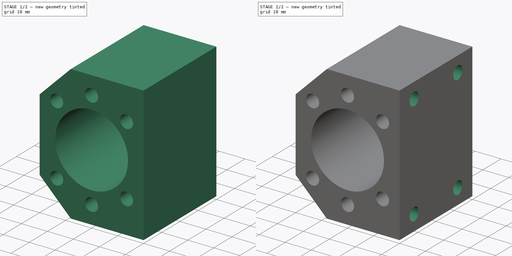
[diagram: build sequence overview — one tinted view per stage of 2, left to right]
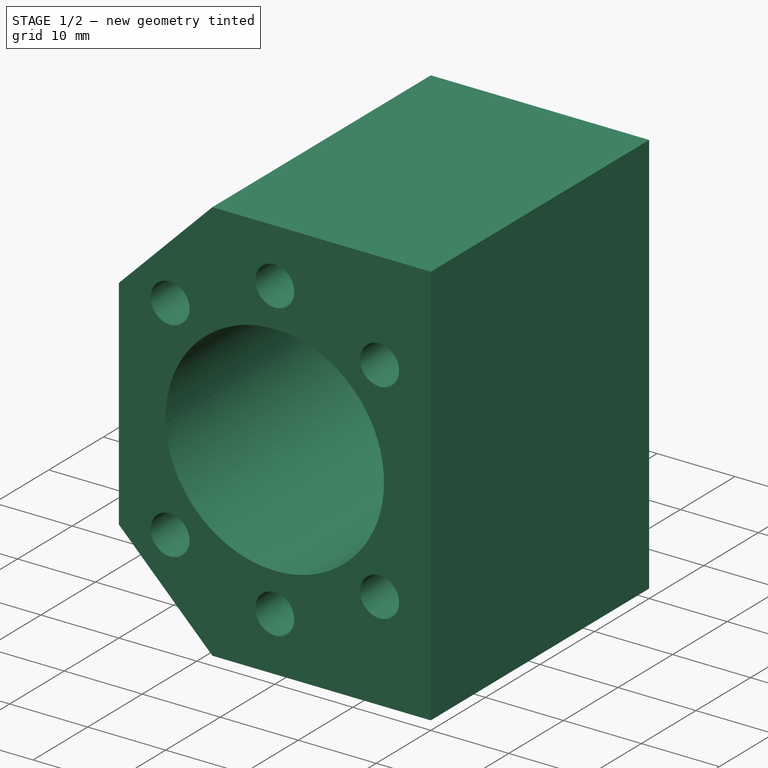
[diagram: stage 1 of 2 — iso view after this stage's code; geometry added in this stage tinted green]
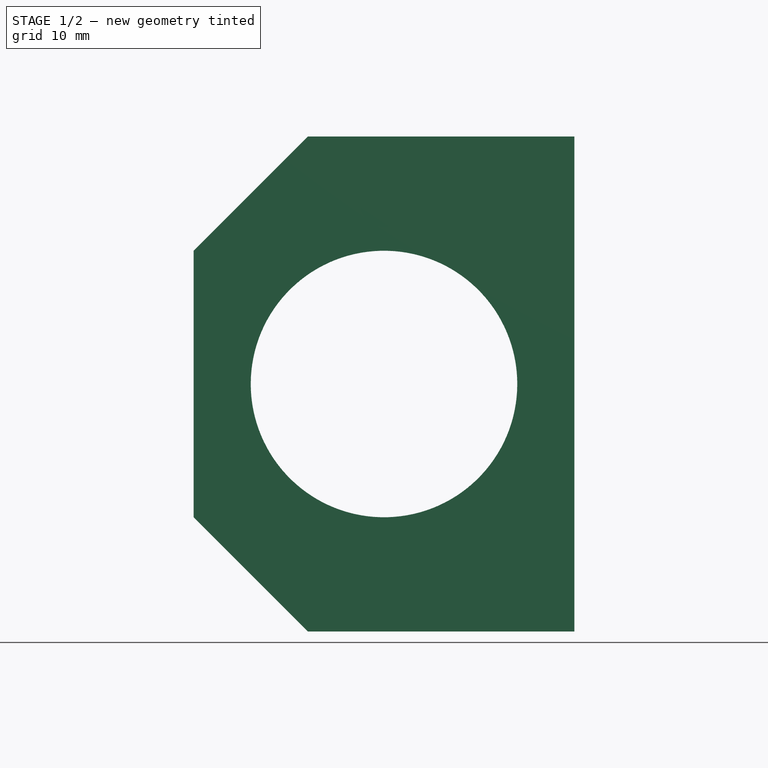
[diagram: stage 1 of 2 — front view after this stage's code; geometry added in this stage tinted green]
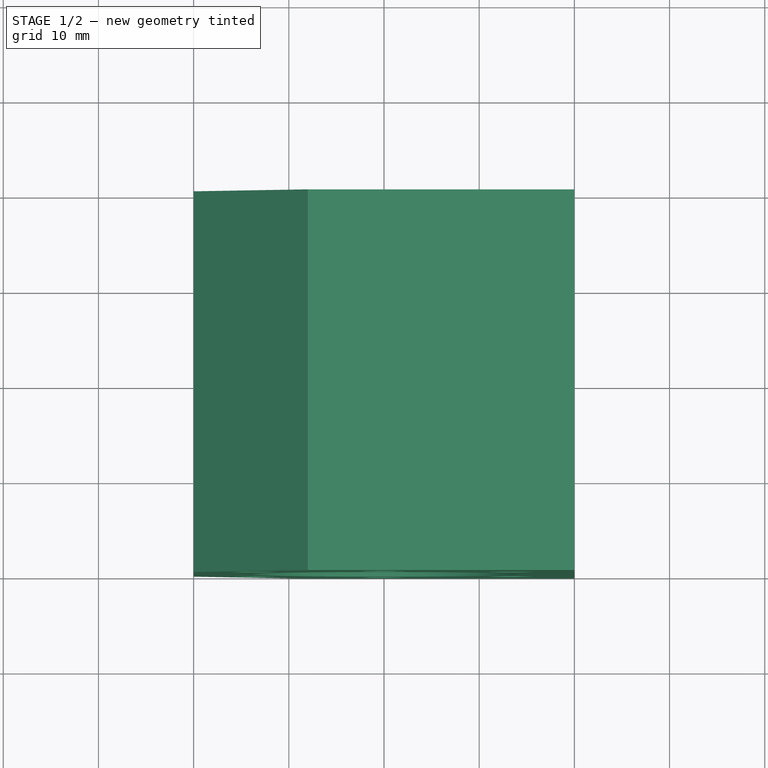
[diagram: stage 1 of 2 — top view after this stage's code; geometry added in this stage tinted green]
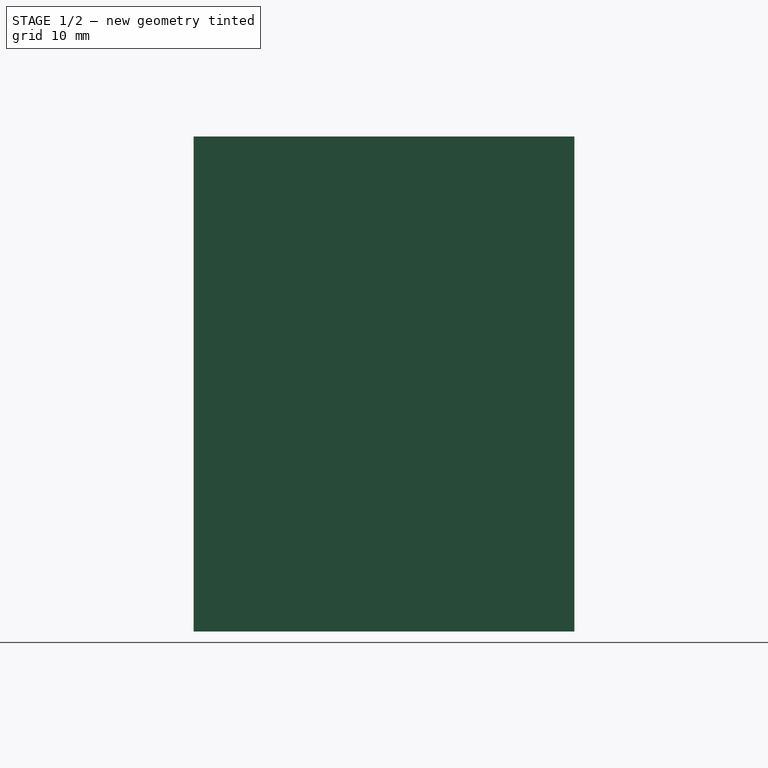
[diagram: stage 1 of 2 — right view after this stage's code; geometry added in this stage tinted green]
FCSTD DOCUMENT  (FreeCAD 0.19R)
Label: DSG16
License: All rights reserved
LicenseURL: http://en.wikipedia.org/wiki/All_rights_reserved
objects: PartDesign::CoordinateSystem×6, Sketcher::SketchObject×3, PartDesign::Pocket×2, PartDesign::Pad×1, PartDesign::Body×1
note: 16 computed .brp shape members not serialized (recipe doc carries the construction recipe); baked Part::Feature solids carry a one-line shape summary decoded from their .brp

FEATURE [Sketcher::SketchObject] Sketch
  FullyConstrained = true
  MapMode = 5
  Placement = pos=(0,0,0) rot=(1,0,0;1.5708rad)
  Support = -> [XZ_Plane]
  sketch-geometry (7):
    g0: LineSegment StartX=20 StartY=-26 StartZ=0 EndX=20 EndY=26 EndZ=0
    g1: LineSegment StartX=20 StartY=26 StartZ=0 EndX=-8 EndY=26 EndZ=0
    g2: LineSegment StartX=-8 StartY=26 StartZ=0 EndX=-20 EndY=14 EndZ=0
    g3: LineSegment StartX=-20 StartY=14 StartZ=0 EndX=-20 EndY=-14 EndZ=0
    g4: LineSegment StartX=-20 StartY=-14 StartZ=0 EndX=-8 EndY=-26 EndZ=0
    g5: LineSegment StartX=-8 StartY=-26 StartZ=0 EndX=20 EndY=-26 EndZ=0
    g6: Circle CenterX=0 CenterY=0 CenterZ=0 NormalX=0 NormalY=0 NormalZ=1 AngleXU=0 Radius=14
  constraints (19):
    c: Coincident(g1,g0)
    c: Horizontal(g1)
    c: Coincident(g2,g1)
    c: Coincident(g3,g2)
    c: Vertical(g3)
    c: Coincident(g4,g3)
    c: Coincident(g5,g4)
    c: Coincident(g5,g0)
    c: Horizontal(g5)
    c: Coincident(g6,g-1)
    c: Diameter(g6) = 28
    c: DistanceY(g0,g0) = 52
    c: DistanceX(g3,g0) = 40
    c: DistanceX(g3,g4) = 12
    c: DistanceY(g4,g3) = 12
    c: DistanceY(g2,g1) = 12
    c: DistanceX(g2,g1) = 12
    c: Symmetric(g0,g0,g-1)
    c: DistanceX(g-1,g0) = 20
FEATURE [PartDesign::Pad] Pad
  Direction = (1,1,1)
  Length = 40
  Length2 = 100
  Placement = pos=(0,0,0) rot=(1,0,0;1.5708rad)
  Profile = -> Sketch
  Reversed = true
  Type = 0
FEATURE [Sketcher::SketchObject] Sketch001
  FullyConstrained = true
  MapMode = 5
  Placement = pos=(0,0,0) rot=(1,0,0;1.5708rad)
  Support = -> [Pad]
  sketch-geometry (11):
    g0: Circle CenterX=0 CenterY=0 CenterZ=0 NormalX=0 NormalY=0 NormalZ=1 AngleXU=0 Radius=19
    g1: Circle CenterX=-13.435 CenterY=13.435 CenterZ=0 NormalX=0 NormalY=0 NormalZ=1 AngleXU=0 Radius=2.5
    g2: Circle CenterX=0 CenterY=19 CenterZ=0 NormalX=0 NormalY=0 NormalZ=1 AngleXU=0 Radius=2.5
    g3: Circle CenterX=0 CenterY=-19 CenterZ=0 NormalX=0 NormalY=0 NormalZ=1 AngleXU=0 Radius=2.5
    g4: Circle CenterX=13.435 CenterY=-13.435 CenterZ=0 NormalX=0 NormalY=0 NormalZ=1 AngleXU=0 Radius=2.5
    g5: Circle CenterX=-13.435 CenterY=-13.435 CenterZ=0 NormalX=0 NormalY=0 NormalZ=1 AngleXU=0 Radius=2.5
    g6: Circle CenterX=13.435 CenterY=13.435 CenterZ=0 NormalX=0 NormalY=0 NormalZ=1 AngleXU=0 Radius=2.5
    g7: LineSegment StartX=13.435 StartY=-13.435 StartZ=0 EndX=0 EndY=0 EndZ=0
    g8: LineSegment StartX=-13.435 StartY=-13.435 StartZ=0 EndX=0 EndY=0 EndZ=0
    g9: LineSegment StartX=0 StartY=0 StartZ=0 EndX=-13.435 EndY=13.435 EndZ=0
    g10: LineSegment StartX=0 StartY=0 StartZ=0 EndX=13.435 EndY=13.435 EndZ=0
  constraints (28):
    c: Coincident(g0,g-1)
    c: PointOnObject(g1,g0)
    c: PointOnObject(g2,g-2)
    c: PointOnObject(g3,g-2)
    c: PointOnObject(g4,g0)
    c: PointOnObject(g5,g0)
    c: PointOnObject(g6,g0)
    c: PointOnObject(g2,g0)
    c: PointOnObject(g3,g0)
    c: Equal(g4,g3)
    c: Equal(g3,g5)
    c: Equal(g5,g1)
    c: Equal(g1,g2)
    c: Equal(g2,g6)
    c: Diameter(g6) = 5
    c: Coincident(g7,g4)
    c: Coincident(g7,g-1)
    c: Coincident(g8,g5)
    c: Coincident(g8,g-1)
    c: Coincident(g9,g-1)
    c: Coincident(g9,g1)
    c: Coincident(g10,g-1)
    c: Coincident(g10,g6)
    c: Angle(g10,g9) = 1.5708
    c: Angle(g8,g7) = 1.5708
    c: Diameter(g0) = 38
    c: Angle(g7,g-1) = 0.785398
    c: Angle(g-1,g10) = 0.785398
FEATURE [PartDesign::Pocket] Pocket
  BaseFeature = -> Pad
  Length = 10
  Length2 = 100
  Placement = pos=(0,0,0) rot=(1,0,0;1.5708rad)
  Profile = -> Sketch001
  Type = 0
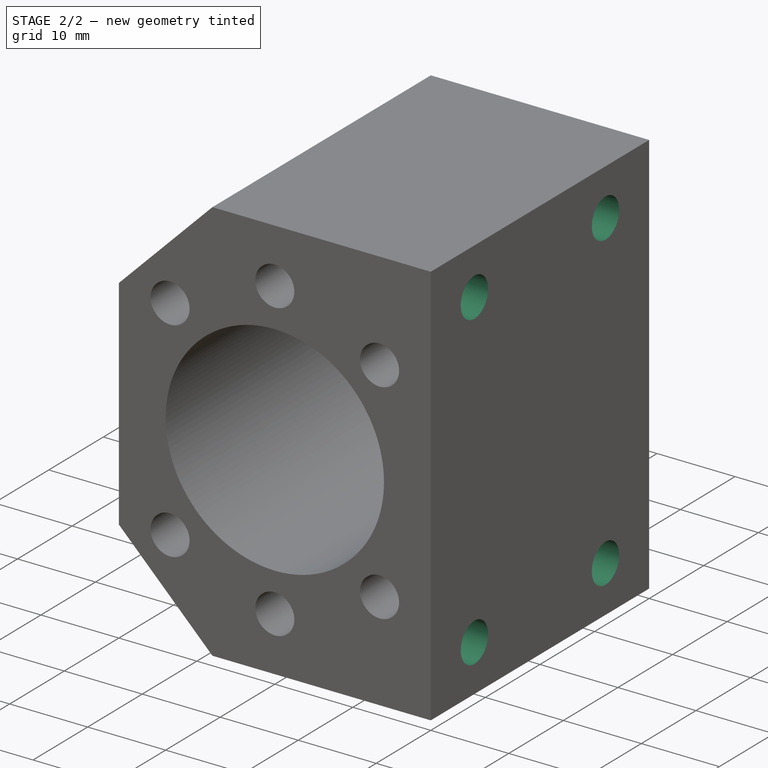
[diagram: stage 2 of 2 — iso view after this stage's code; geometry added in this stage tinted green]
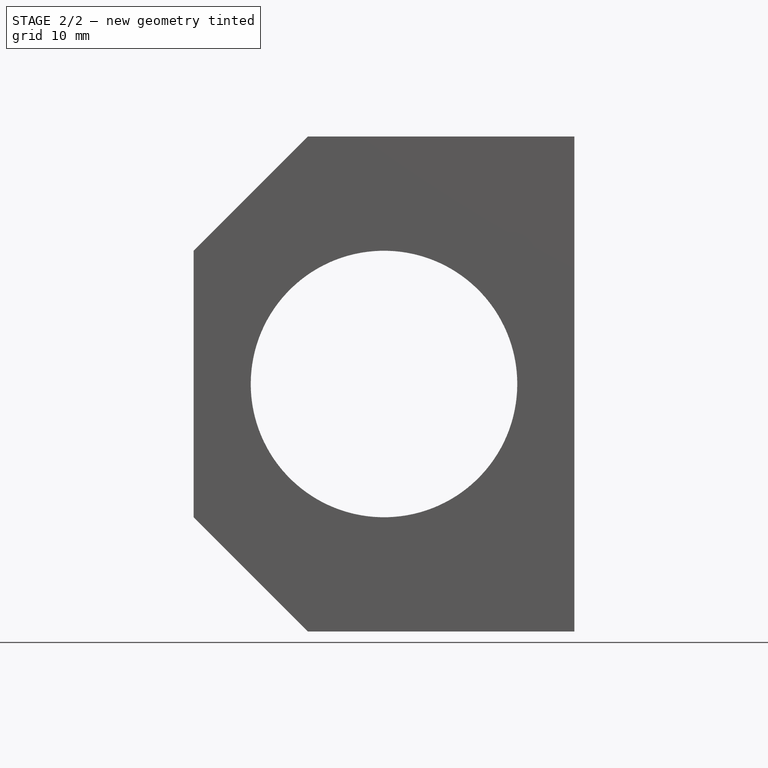
[diagram: stage 2 of 2 — front view after this stage's code; geometry added in this stage tinted green]
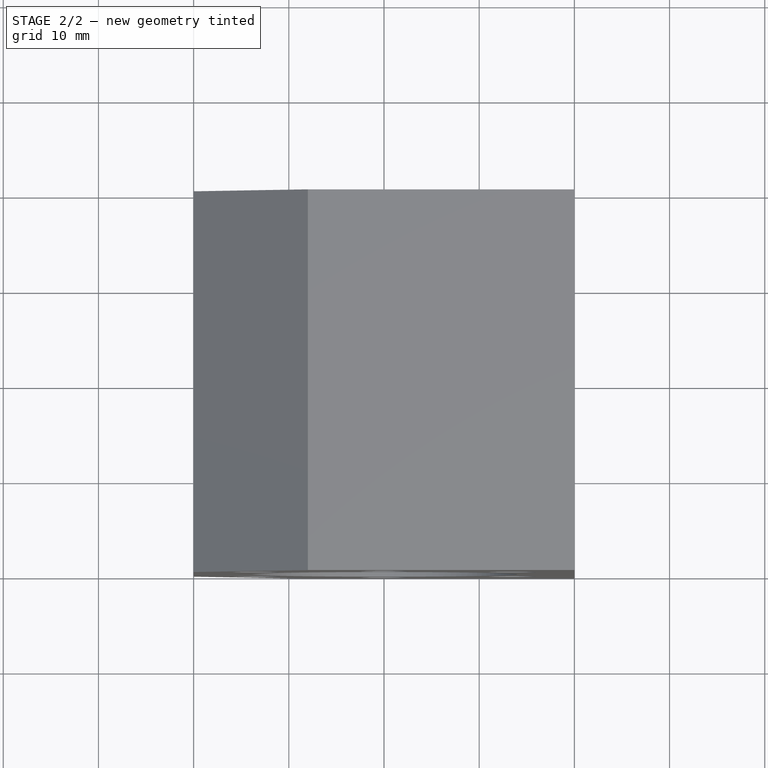
[diagram: stage 2 of 2 — top view after this stage's code; geometry added in this stage tinted green]
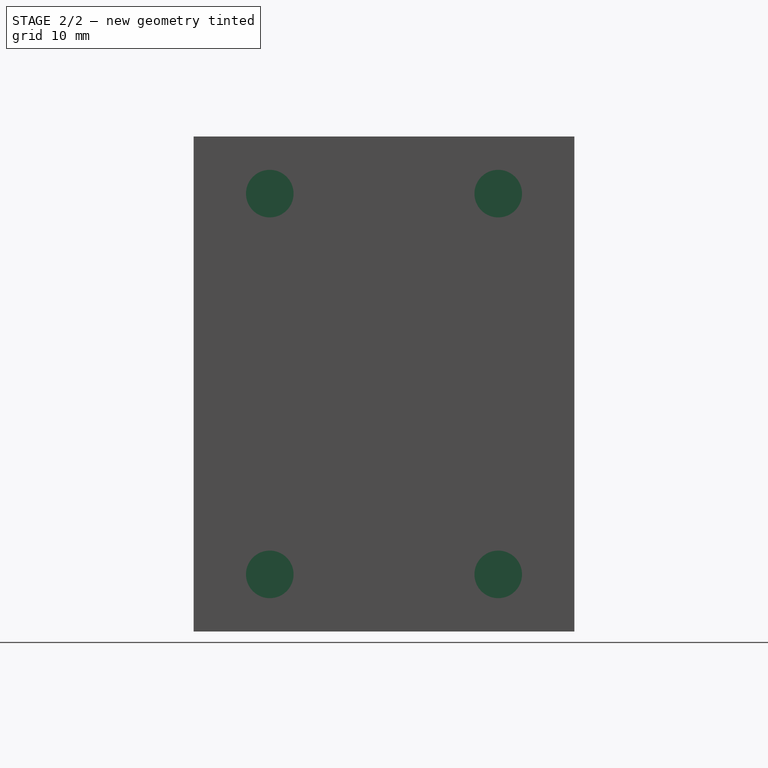
[diagram: stage 2 of 2 — right view after this stage's code; geometry added in this stage tinted green]
FEATURE [Sketcher::SketchObject] Sketch002
  FullyConstrained = true
  MapMode = 5
  Placement = pos=(20,0,0) rot=(0.707107,0,0.707107;3.14159rad)
  Support = -> [Pocket]
  sketch-geometry (4):
    g0: Circle CenterX=20 CenterY=-8 CenterZ=0 NormalX=0 NormalY=0 NormalZ=1 AngleXU=0 Radius=2.5
    g1: Circle CenterX=20 CenterY=-32 CenterZ=0 NormalX=0 NormalY=0 NormalZ=1 AngleXU=0 Radius=2.5
    g2: Circle CenterX=-20 CenterY=-8 CenterZ=0 NormalX=0 NormalY=0 NormalZ=1 AngleXU=0 Radius=2.5
    g3: Circle CenterX=-20 CenterY=-32 CenterZ=0 NormalX=0 NormalY=0 NormalZ=1 AngleXU=0 Radius=2.5
  constraints (10):
    c: Equal(g3,g2)
    c: Equal(g2,g1)
    c: Equal(g1,g0)
    c: Diameter(g1) = 5
    c: DistanceY(g3,g2) = 24
    c: Symmetric(g2,g0,g-2)
    c: Symmetric(g3,g1,g-2)
    c: DistanceX(g3,g1) = 40
    c: DistanceX(g2,g0) = 40
    c: DistanceY(g2,g-1) = 8
FEATURE [PartDesign::Pocket] Pocket001
  BaseFeature = -> Pocket
  Length = 10
  Length2 = 100
  Placement = pos=(0,0,0) rot=(1,0,0;1.5708rad)
  Profile = -> Sketch002
  Type = 0
FEATURE [PartDesign::CoordinateSystem] LCS_H1
  AttacherType = Attacher::AttachEngine3D
  MapMode = 11
  Placement = pos=(13.435,1.34e-14,13.435) rot=(0.57735,-0.57735,0.57735;2.0944rad)
  Support = -> [Pocket001]
FEATURE [PartDesign::CoordinateSystem] LCS_H2
  AttacherType = Attacher::AttachEngine3D
  MapMode = 11
  Placement = pos=(-13.435,1.34e-14,13.435) rot=(0.57735,-0.57735,0.57735;2.0944rad)
  Support = -> [Pocket001]
FEATURE [PartDesign::CoordinateSystem] LCS_H3
  AttacherType = Attacher::AttachEngine3D
  MapMode = 11
  Placement = pos=(13.435,-1.34e-14,-13.435) rot=(0.57735,-0.57735,0.57735;2.0944rad)
  Support = -> [Pocket001]
FEATURE [PartDesign::CoordinateSystem] LCS_H4
  AttacherType = Attacher::AttachEngine3D
  MapMode = 11
  Placement = pos=(-13.435,-1.34e-14,-13.435) rot=(0.57735,-0.57735,0.57735;2.0944rad)
  Support = -> [Pocket001]
FEATURE [PartDesign::CoordinateSystem] LCS_M1
  AttacherType = Attacher::AttachEngine3D
  MapMode = 11
  Placement = pos=(20,8,20) rot=(0.57735,-0.57735,0.57735;4.18879rad)
  Support = -> [Pocket001]
FEATURE [PartDesign::CoordinateSystem] LCS_M2
  AttacherType = Attacher::AttachEngine3D
  MapMode = 11
  Placement = pos=(20,8,-20) rot=(0.57735,-0.57735,0.57735;4.18879rad)
  Support = -> [Pocket001]
FEATURE [PartDesign::Body] Body
  Group = -> [Sketch,Pad,Sketch001,Pocket,Sketch002,Pocket001,LCS_H1,LCS_H2,LCS_H3,LCS_H4,LCS_M1,LCS_M2]
  Origin = -> Origin
  Tip = -> Pocket001
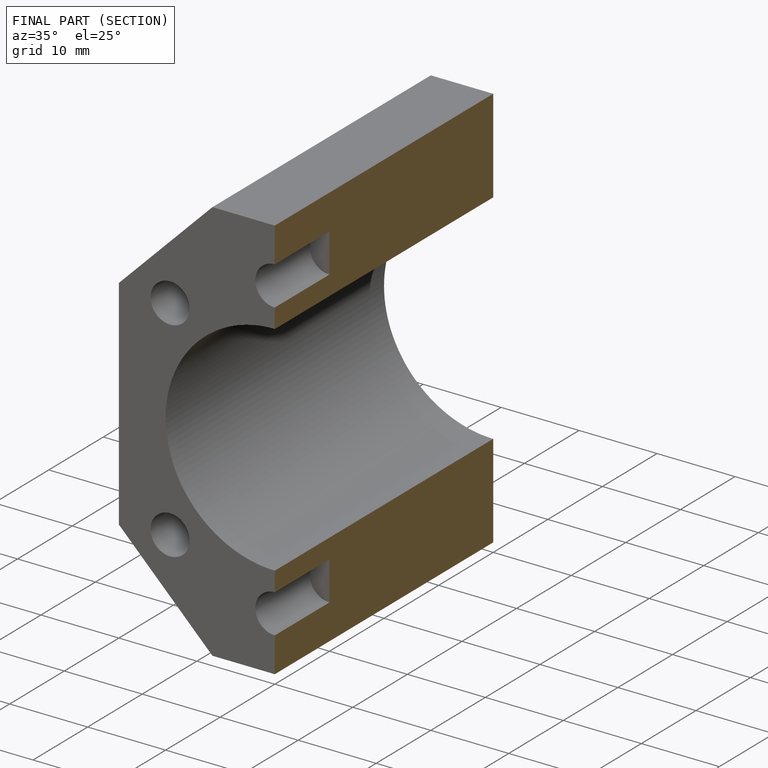
[diagram: finished part — half-section view (interior)]
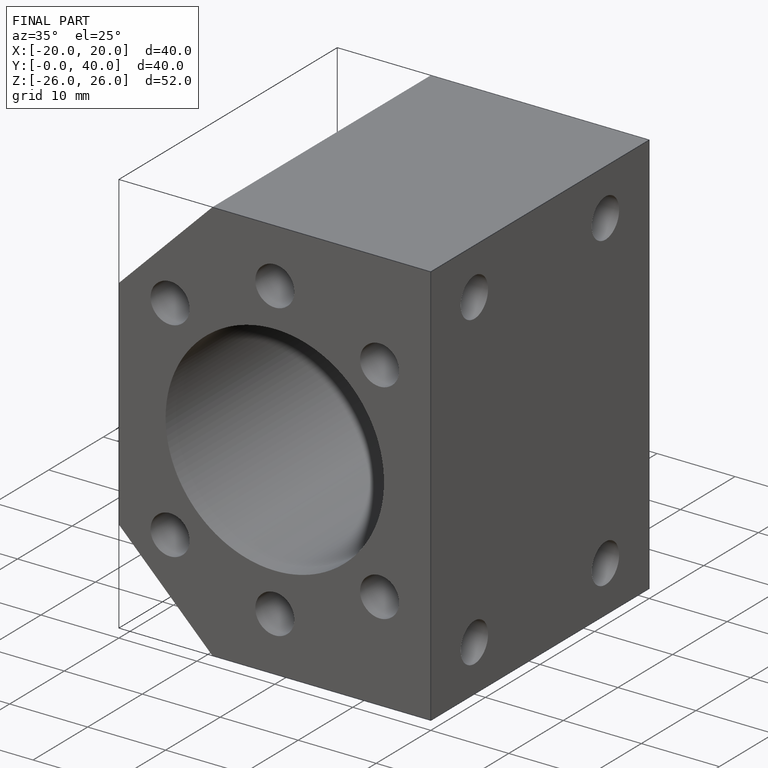
[diagram: finished part — iso view with bounding-box wireframe]
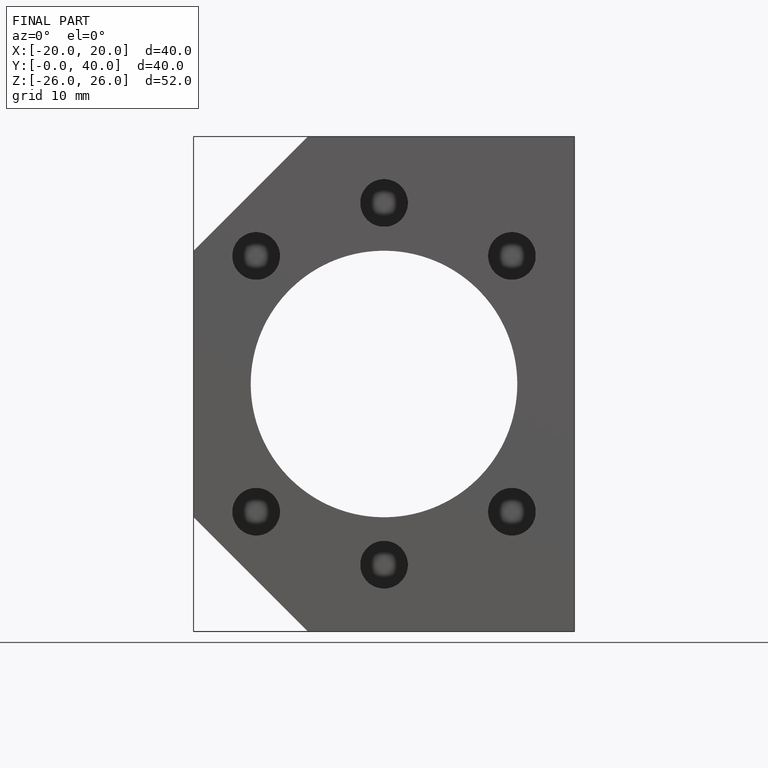
[diagram: finished part — front view with bounding-box wireframe]
